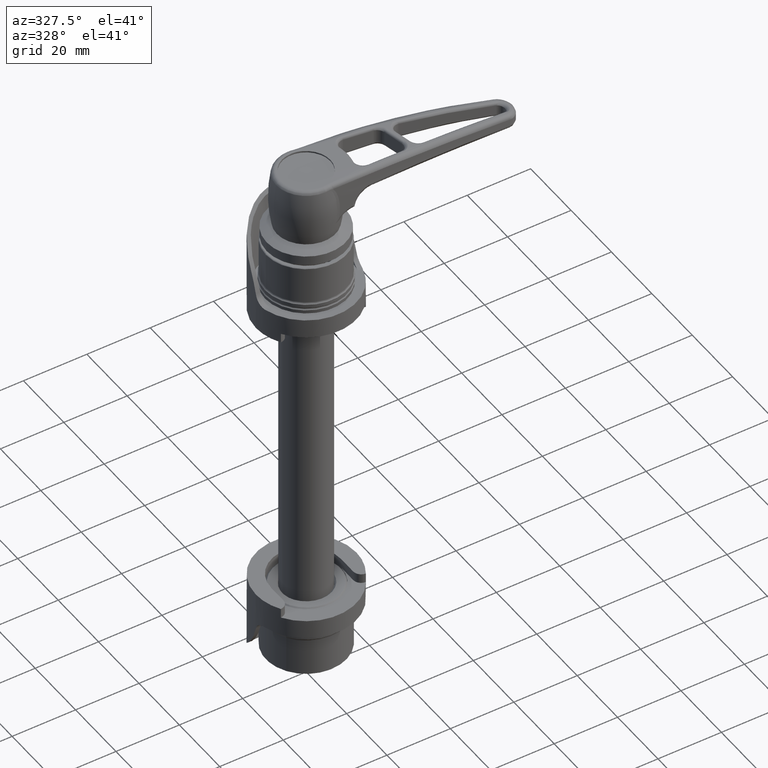
[diagram: clean part render]
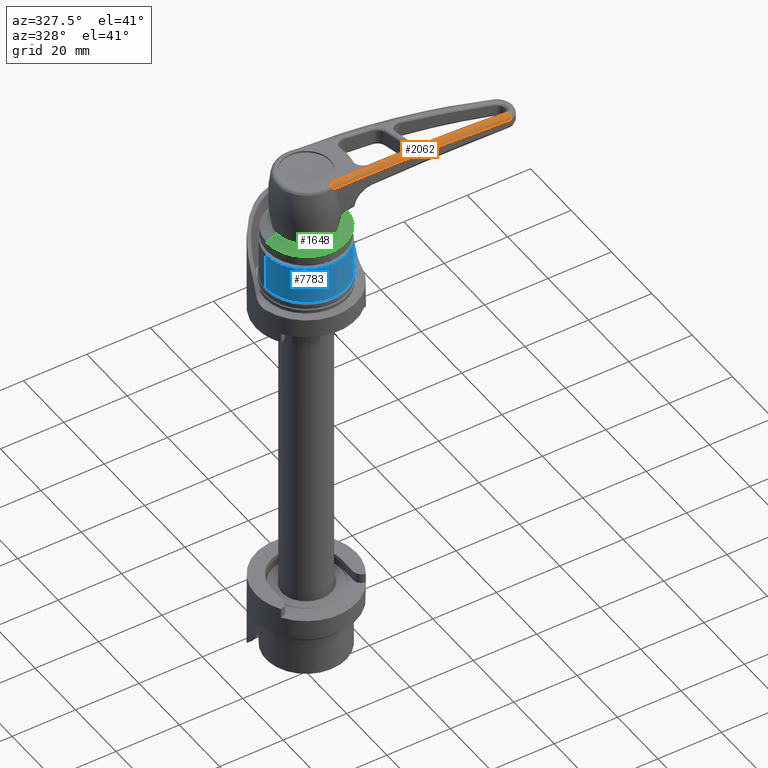
[diagram: same view with three faces highlighted in distinct colors, each labeled with its STEP entity id]
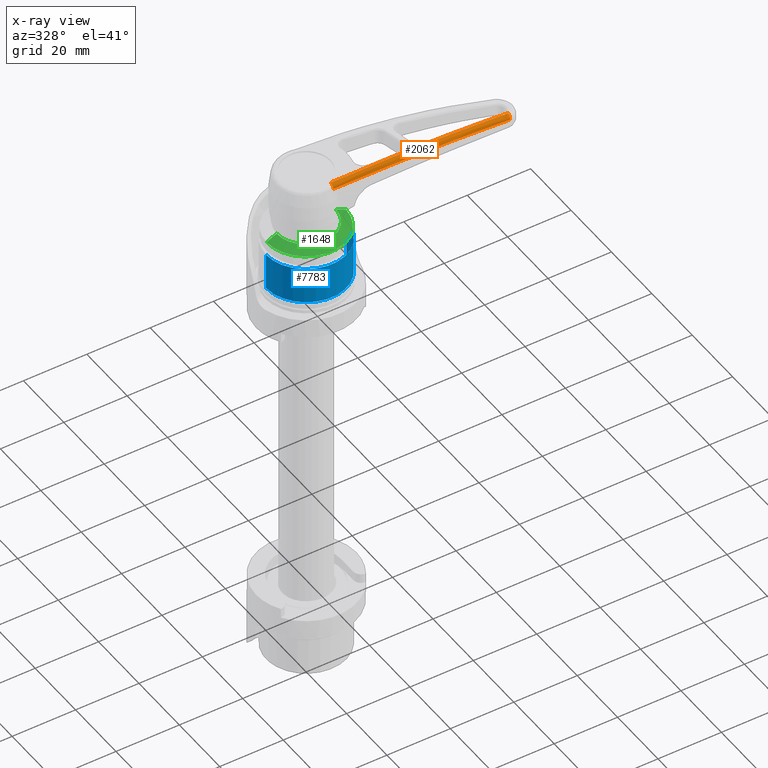
[diagram: x-ray of the same camera — body ghosted, the three highlighted faces saturated]
A machine part, auxiliary view with three faces highlighted in distinct colors.
The next image is the same camera in x-ray (body ghosted, the three faces saturated) — at least one of them is partly hidden behind the body in this view.
Their STEP definitions:

[orange] entity #2062 — the highlighted face is a freeform B-spline surface patch.
#196 = CARTESIAN_POINT ( 'NONE',  ( -16.37632204747143300, -8.445771210673012100, 22.42499495814514900 ) ) ;
#220 = ORIENTED_EDGE ( 'NONE', *, *, #562, .T. ) ;
#396 = DIRECTION ( 'NONE',  ( 0.1952254402668306100, 0.1367512104009111500, 0.9711777046074050500 ) ) ;
#399 = CARTESIAN_POINT ( 'NONE',  ( -15.60226658517381900, -6.821689702975148400, 42.06305042503177600 ) ) ;
#562 = EDGE_CURVE ( 'NONE', #7601, #2502, #7754, .T. ) ;
#843 = CARTESIAN_POINT ( 'NONE',  ( -17.00779276635516600, -9.213810107822189000, 2.720419644946052300 ) ) ;
#957 = CARTESIAN_POINT ( 'NONE',  ( -10.96329043460328400, -4.401578332879687100, 61.19878478484422900 ) ) ;
#1063 = CARTESIAN_POINT ( 'NONE',  ( -17.64363124668022600, -7.178022163901468700, 22.43674092625167700 ) ) ;
#1096 = EDGE_LOOP ( 'NONE', ( #220, #1210, #6496, #2505 ) ) ;
#1210 = ORIENTED_EDGE ( 'NONE', *, *, #5373, .F. ) ;
#1416 = CARTESIAN_POINT ( 'NONE',  ( -18.27775077696330900, -7.944185718990716800, 2.699861401964886100 ) ) ;
#1699 = CARTESIAN_POINT ( 'NONE',  ( -18.19720890475398200, -7.704233997828117400, 12.60425796685177600 ) ) ;
#1701 = CARTESIAN_POINT ( 'NONE',  ( -16.37627112022487800, -8.445726343017977200, 22.42570360881200700 ) ) ;
#2062 = ADVANCED_FACE ( 'NONE', ( #7635 ), #7436, .T. ) ;
#2345 = CARTESIAN_POINT ( 'NONE',  ( -18.19580595693749800, -8.971923775106473500, 12.65550570503125600 ) ) ;
#2423 = AXIS2_PLACEMENT_3D ( 'NONE', #3486, #8052, #4145 ) ;
#2428 = CARTESIAN_POINT ( 'NONE',  ( -17.00779276635516600, -9.213810107822189000, 2.720419644946052300 ) ) ;
#2502 = VERTEX_POINT ( 'NONE', #2428 ) ;
#2505 = ORIENTED_EDGE ( 'NONE', *, *, #2996, .F. ) ;
#2955 = CARTESIAN_POINT ( 'NONE',  ( -10.96329043460328400, -4.401578332879812400, 61.19878478484434900 ) ) ;
#2983 = EDGE_CURVE ( 'NONE', #4694, #4851, #3522, .T. ) ;
#2986 = CARTESIAN_POINT ( 'NONE',  ( -17.64367136291120600, -7.178057265416965600, 22.43618453229931100 ) ) ;
#2990 = CARTESIAN_POINT ( 'NONE',  ( -18.27775077696328100, -7.944185718990699900, 2.699861401964903400 ) ) ;
#2996 = EDGE_CURVE ( 'NONE', #7601, #4694, #5111, .T. ) ;
#3486 = CARTESIAN_POINT ( 'NONE',  ( -17.00779276635528000, -7.944185718990661700, 2.689534190697497400 ) ) ;
#3522 = CIRCLE ( 'NONE', #5459, 1.270000000000000900 ) ;
#3607 = CARTESIAN_POINT ( 'NONE',  ( -14.12602656925944800, -5.735370967940046900, 51.75963995288333300 ) ) ;
#3635 = CARTESIAN_POINT ( 'NONE',  ( -14.14247369902130700, -4.493222830259695900, 51.65057323087243200 ) ) ;
#3642 = CARTESIAN_POINT ( 'NONE',  ( -17.00779276635528000, -9.213810107822237000, 2.720419644946146400 ) ) ;
#4057 = CARTESIAN_POINT ( 'NONE',  ( -14.35729299935852200, -6.836269580565196500, 41.91690336063823700 ) ) ;
#4145 = DIRECTION ( 'NONE',  ( 0.0000000000000000000, -0.9997042431744391800, 0.02431925531388444100 ) ) ;
#4234 = CARTESIAN_POINT ( 'NONE',  ( -12.17508405979616400, -4.367944823418876700, 61.43764274025404100 ) ) ;
#4262 = CARTESIAN_POINT ( 'NONE',  ( -10.96329043460328400, -3.143984523485603400, 61.02170341774588300 ) ) ;
#4266 = CARTESIAN_POINT ( 'NONE',  ( -15.61625232874243200, -5.572517795259070500, 41.95989381166600700 ) ) ;
#4694 = VERTEX_POINT ( 'NONE', #6637 ) ;
#4709 = CARTESIAN_POINT ( 'NONE',  ( -16.92758169564268300, -8.973259506862062200, 12.60885797803186900 ) ) ;
#4851 = VERTEX_POINT ( 'NONE', #957 ) ;
#4933 = DIRECTION ( 'NONE',  ( 0.9803880343094231200, 0.0000000000000000000, -0.1970768940868141700 ) ) ;
#4936 = CARTESIAN_POINT ( 'NONE',  ( -14.35719804231579000, -6.836198154510348100, 41.91760307581377300 ) ) ;
#5111 = B_SPLINE_CURVE_WITH_KNOTS ( 'NONE', 3,
 ( #6235, #1699, #2986, #7552, #3635, #8191 ),
 .UNSPECIFIED., .F., .F.,
 ( 4, 2, 4 ),
 ( 0.0000000000000000000, 0.02954053794392725100, 0.05908107588785448800 ),
 .UNSPECIFIED. ) ;
#5373 = EDGE_CURVE ( 'NONE', #4851, #2502, #6999, .T. ) ;
#5459 = AXIS2_PLACEMENT_3D ( 'NONE', #4262, #396, #4933 ) ;
#5577 = CARTESIAN_POINT ( 'NONE',  ( -17.64094533026947800, -8.442574009275885400, 22.49427149934535200 ) ) ;
#6235 = CARTESIAN_POINT ( 'NONE',  ( -18.27775077696330900, -7.944185718990716800, 2.699861401964886100 ) ) ;
#6241 = CARTESIAN_POINT ( 'NONE',  ( -18.19720621113156500, -7.704225973131718400, 12.60458920703252000 ) ) ;
#6496 = ORIENTED_EDGE ( 'NONE', *, *, #2983, .F. ) ;
#6637 = CARTESIAN_POINT ( 'NONE',  ( -12.20838323817624600, -3.143984523485642100, 61.27199107323611600 ) ) ;
#6884 = CARTESIAN_POINT ( 'NONE',  ( -12.20838323817625300, -3.143984523485630100, 61.27199107323622200 ) ) ;
#6909 = CARTESIAN_POINT ( 'NONE',  ( -16.92757817891284900, -8.973248958810412300, 12.60929158226804100 ) ) ;
#6999 = B_SPLINE_CURVE_WITH_KNOTS ( 'NONE', 3,
 ( #7262, #7315, #4057, #196, #4709, #843 ),
 .UNSPECIFIED., .F., .F.,
 ( 4, 2, 4 ),
 ( 0.0000000000000000000, 0.02949327369303711100, 0.05898654738607422100 ),
 .UNSPECIFIED. ) ;
#7262 = CARTESIAN_POINT ( 'NONE',  ( -10.96329043460328400, -4.401578332879687100, 61.19878478484422900 ) ) ;
#7315 = CARTESIAN_POINT ( 'NONE',  ( -12.88947785832128000, -5.754212666164394600, 51.59266646880570300 ) ) ;
#7436 =( BOUNDED_SURFACE ( )  B_SPLINE_SURFACE ( 3, 2, ( 
 ( #6884, #4234, #2955 ),
 ( #7525, #3607, #8172 ),
 ( #4266, #399, #4936 ),
 ( #1063, #5577, #1701 ),
 ( #6241, #2345, #6909 ),
 ( #2990, #7556, #3642 ) ),
 .UNSPECIFIED., .F., .F., .F. ) 
 B_SPLINE_SURFACE_WITH_KNOTS ( ( 4, 2, 4 ),
 ( 3, 3 ),
 ( 9.436895709313830600E-016, 0.02942031571333458500, 0.05884063142666822600 ),
 ( 0.0000000000000000000, 1.000000000000000000 ),
 .UNSPECIFIED. ) 
 GEOMETRIC_REPRESENTATION_ITEM ( )  RATIONAL_B_SPLINE_SURFACE ( (
 ( 1.000000000000000000, 0.7167563214523385900, 1.000000000000000000),
 ( 1.000000000000000000, 0.7139469228562879100, 1.000000000000000000),
 ( 1.000000000000000000, 0.7117156361562403400, 1.000000000000000000),
 ( 1.000000000000000000, 0.7084956949718409500, 1.000000000000000000),
 ( 1.000000000000000000, 0.7075070865332152600, 1.000000000000000000),
 ( 1.000000000000000000, 0.7071766950255088400, 1.000000000000000000) ) ) 
 REPRESENTATION_ITEM ( '' )  SURFACE ( )  );
#7525 = CARTESIAN_POINT ( 'NONE',  ( -14.14239320756587000, -4.493166680093594300, 51.65097364747196500 ) ) ;
#7552 = CARTESIAN_POINT ( 'NONE',  ( -15.61632684208855600, -5.572573470394946300, 41.95934634178876600 ) ) ;
#7556 = CARTESIAN_POINT ( 'NONE',  ( -18.27749968483441000, -9.213559081656020700, 2.730738707774113600 ) ) ;
#7601 = VERTEX_POINT ( 'NONE', #1416 ) ;
#7635 = FACE_OUTER_BOUND ( 'NONE', #1096, .T. ) ;
#7754 = CIRCLE ( 'NONE', #2423, 1.269999999999994000 ) ;
#8052 = DIRECTION ( 'NONE',  ( 0.008129257579562735500, 0.02431845173369601800, 0.9996712099868041400 ) ) ;
#8172 = CARTESIAN_POINT ( 'NONE',  ( -12.88937713967910700, -5.754141937175510300, 51.59316877088414800 ) ) ;
#8191 = CARTESIAN_POINT ( 'NONE',  ( -12.20838323817624600, -3.143984523485642100, 61.27199107323611600 ) ) ;

[blue] entity #7783 — the highlighted cylindrical surface (partial cylindrical patch) has radius 12.7 mm, axis along (-0, 0, -1).
#56 = CARTESIAN_POINT ( 'NONE',  ( 21.49999999999999300, 1.555301434917138400E-015, -12.69999999999999900 ) ) ;
#288 = DIRECTION ( 'NONE',  ( -1.000000000000000000, -0.0000000000000000000, -0.0000000000000000000 ) ) ;
#395 = ORIENTED_EDGE ( 'NONE', *, *, #4015, .T. ) ;
#558 = EDGE_CURVE ( 'NONE', #4662, #1223, #4284, .T. ) ;
#984 = AXIS2_PLACEMENT_3D ( 'NONE', #1851, #6394, #2491 ) ;
#1027 = CARTESIAN_POINT ( 'NONE',  ( 0.0000000000000000000, 0.0000000000000000000, 12.69999999999999900 ) ) ;
#1213 = ORIENTED_EDGE ( 'NONE', *, *, #558, .F. ) ;
#1223 = VERTEX_POINT ( 'NONE', #8338 ) ;
#1639 = ORIENTED_EDGE ( 'NONE', *, *, #5074, .T. ) ;
#1851 = CARTESIAN_POINT ( 'NONE',  ( 21.49999999999999300, 0.0000000000000000000, 0.0000000000000000000 ) ) ;
#2195 = DIRECTION ( 'NONE',  ( -1.000000000000000000, -0.0000000000000000000, -0.0000000000000000000 ) ) ;
#2403 = VERTEX_POINT ( 'NONE', #4024 ) ;
#2491 = DIRECTION ( 'NONE',  ( 0.0000000000000000000, 0.0000000000000000000, 1.000000000000000000 ) ) ;
#2575 = EDGE_LOOP ( 'NONE', ( #1213, #1639, #395, #7418 ) ) ;
#3007 = AXIS2_PLACEMENT_3D ( 'NONE', #4151, #288, #4814 ) ;
#3159 = VECTOR ( 'NONE', #2195, 1000.000000000000000 ) ;
#3569 = CARTESIAN_POINT ( 'NONE',  ( 0.0000000000000000000, 0.0000000000000000000, 0.0000000000000000000 ) ) ;
#4015 = EDGE_CURVE ( 'NONE', #5156, #2403, #4427, .T. ) ;
#4024 = CARTESIAN_POINT ( 'NONE',  ( 9.821490144732802500, 0.0000000000000000000, 12.69999999999999900 ) ) ;
#4150 = CYLINDRICAL_SURFACE ( 'NONE', #7387, 12.69999999999999900 ) ;
#4151 = CARTESIAN_POINT ( 'NONE',  ( 9.821490144732802500, 0.0000000000000000000, 0.0000000000000000000 ) ) ;
#4226 = DIRECTION ( 'NONE',  ( -1.000000000000000000, -0.0000000000000000000, -0.0000000000000000000 ) ) ;
#4284 = LINE ( 'NONE', #6084, #3159 ) ;
#4351 = FACE_OUTER_BOUND ( 'NONE', #2575, .T. ) ;
#4427 = LINE ( 'NONE', #1027, #7716 ) ;
#4662 = VERTEX_POINT ( 'NONE', #56 ) ;
#4783 = CIRCLE ( 'NONE', #3007, 12.69999999999999900 ) ;
#4789 = CIRCLE ( 'NONE', #984, 12.69999999999999900 ) ;
#4814 = DIRECTION ( 'NONE',  ( 0.0000000000000000000, 0.0000000000000000000, 1.000000000000000000 ) ) ;
#4896 = DIRECTION ( 'NONE',  ( 0.0000000000000000000, 0.0000000000000000000, 1.000000000000000000 ) ) ;
#5074 = EDGE_CURVE ( 'NONE', #4662, #5156, #4789, .T. ) ;
#5156 = VERTEX_POINT ( 'NONE', #5783 ) ;
#5783 = CARTESIAN_POINT ( 'NONE',  ( 21.49999999999999300, 0.0000000000000000000, 12.69999999999999900 ) ) ;
#5800 = EDGE_CURVE ( 'NONE', #1223, #2403, #4783, .T. ) ;
#6084 = CARTESIAN_POINT ( 'NONE',  ( 0.0000000000000000000, 1.555301434917138400E-015, -12.69999999999999900 ) ) ;
#6394 = DIRECTION ( 'NONE',  ( -1.000000000000000000, -0.0000000000000000000, -0.0000000000000000000 ) ) ;
#7387 = AXIS2_PLACEMENT_3D ( 'NONE', #3569, #4226, #4896 ) ;
#7418 = ORIENTED_EDGE ( 'NONE', *, *, #5800, .F. ) ;
#7716 = VECTOR ( 'NONE', #8167, 1000.000000000000000 ) ;
#7783 = ADVANCED_FACE ( 'NONE', ( #4351 ), #4150, .T. ) ;
#8167 = DIRECTION ( 'NONE',  ( -1.000000000000000000, -0.0000000000000000000, -0.0000000000000000000 ) ) ;
#8338 = CARTESIAN_POINT ( 'NONE',  ( 9.821490144732802500, 1.555301434917138400E-015, -12.69999999999999900 ) ) ;

[green] entity #1648 — the highlighted conical surface has half-angle 64.537 deg.
#166 = VERTEX_POINT ( 'NONE', #2526 ) ;
#222 = AXIS2_PLACEMENT_3D ( 'NONE', #875, #5393, #1519 ) ;
#403 = VERTEX_POINT ( 'NONE', #6520 ) ;
#708 = EDGE_LOOP ( 'NONE', ( #3083, #4754, #4810, #5318 ) ) ;
#875 = CARTESIAN_POINT ( 'NONE',  ( 0.0000000000000000000, 0.0000000000000000000, 0.0000000000000000000 ) ) ;
#1308 = EDGE_CURVE ( 'NONE', #3518, #166, #3661, .T. ) ;
#1519 = DIRECTION ( 'NONE',  ( -1.725633230170970500E-031, 9.714451465470160400E-017, 1.000000000000000000 ) ) ;
#1648 = ADVANCED_FACE ( 'NONE', ( #2847 ), #2346, .T. ) ;
#1847 = CIRCLE ( 'NONE', #4280, 12.47139999999994600 ) ;
#1867 = CARTESIAN_POINT ( 'NONE',  ( 1.523999999999997600, 2.738834109153293100E-015, 12.47139999999994600 ) ) ;
#2188 = DIRECTION ( 'NONE',  ( -1.000000000000000000, 6.008901426488175900E-032, 0.0000000000000000000 ) ) ;
#2346 = CONICAL_SURFACE ( 'NONE', #5695, 12.47139999999994600, 1.126377116893797500 ) ;
#2425 = LINE ( 'NONE', #1867, #5675 ) ;
#2526 = CARTESIAN_POINT ( 'NONE',  ( 0.0000000000000000000, 2.387415476003282100E-015, 9.270999999999999000 ) ) ;
#2837 = EDGE_CURVE ( 'NONE', #3518, #5632, #7818, .T. ) ;
#2847 = FACE_OUTER_BOUND ( 'NONE', #708, .T. ) ;
#2874 = EDGE_CURVE ( 'NONE', #166, #403, #2425, .T. ) ;
#2898 = DIRECTION ( 'NONE',  ( 0.4299335803923494700, 1.982764713474670800E-016, 0.9028605188239294800 ) ) ;
#3056 = DIRECTION ( 'NONE',  ( 1.000000000000000000, -6.008901426488175900E-032, 0.0000000000000000000 ) ) ;
#3066 = CARTESIAN_POINT ( 'NONE',  ( 1.523999999999997600, -1.211528100064610800E-015, -12.47139999999994600 ) ) ;
#3083 = ORIENTED_EDGE ( 'NONE', *, *, #2874, .F. ) ;
#3414 = CARTESIAN_POINT ( 'NONE',  ( 0.0000000000000000000, -1.056077447714158000E-015, -9.270999999999999000 ) ) ;
#3518 = VERTEX_POINT ( 'NONE', #3414 ) ;
#3661 = CIRCLE ( 'NONE', #222, 9.270999999999959900 ) ;
#3897 = CARTESIAN_POINT ( 'NONE',  ( 1.523999999999997600, 3.157779090239839200E-016, -12.47139999999999700 ) ) ;
#4280 = AXIS2_PLACEMENT_3D ( 'NONE', #6077, #2188, #6750 ) ;
#4365 = CARTESIAN_POINT ( 'NONE',  ( 1.523999999999997600, 2.965932114356343200E-029, 0.0000000000000000000 ) ) ;
#4754 = ORIENTED_EDGE ( 'NONE', *, *, #1308, .F. ) ;
#4810 = ORIENTED_EDGE ( 'NONE', *, *, #2837, .T. ) ;
#5041 = DIRECTION ( 'NONE',  ( 0.0000000000000000000, -9.714451465470160400E-017, -1.000000000000000000 ) ) ;
#5048 = DIRECTION ( 'NONE',  ( 0.4299335803923494700, -8.770794690204274300E-017, -0.9028605188239294800 ) ) ;
#5318 = ORIENTED_EDGE ( 'NONE', *, *, #5433, .T. ) ;
#5393 = DIRECTION ( 'NONE',  ( -1.000000000000000000, 6.008901426488175900E-032, 0.0000000000000000000 ) ) ;
#5433 = EDGE_CURVE ( 'NONE', #5632, #403, #1847, .T. ) ;
#5632 = VERTEX_POINT ( 'NONE', #3897 ) ;
#5675 = VECTOR ( 'NONE', #2898, 1000.000000000000100 ) ;
#5695 = AXIS2_PLACEMENT_3D ( 'NONE', #4365, #3056, #5041 ) ;
#6077 = CARTESIAN_POINT ( 'NONE',  ( 1.523999999999997600, 2.965932114356343200E-029, 0.0000000000000000000 ) ) ;
#6520 = CARTESIAN_POINT ( 'NONE',  ( 1.523999999999997600, 1.211528100064670200E-015, 12.47139999999994600 ) ) ;
#6750 = DIRECTION ( 'NONE',  ( 0.0000000000000000000, 9.714451465470160400E-017, 1.000000000000000000 ) ) ;
#7625 = VECTOR ( 'NONE', #5048, 1000.000000000000100 ) ;
#7818 = LINE ( 'NONE', #3066, #7625 ) ;